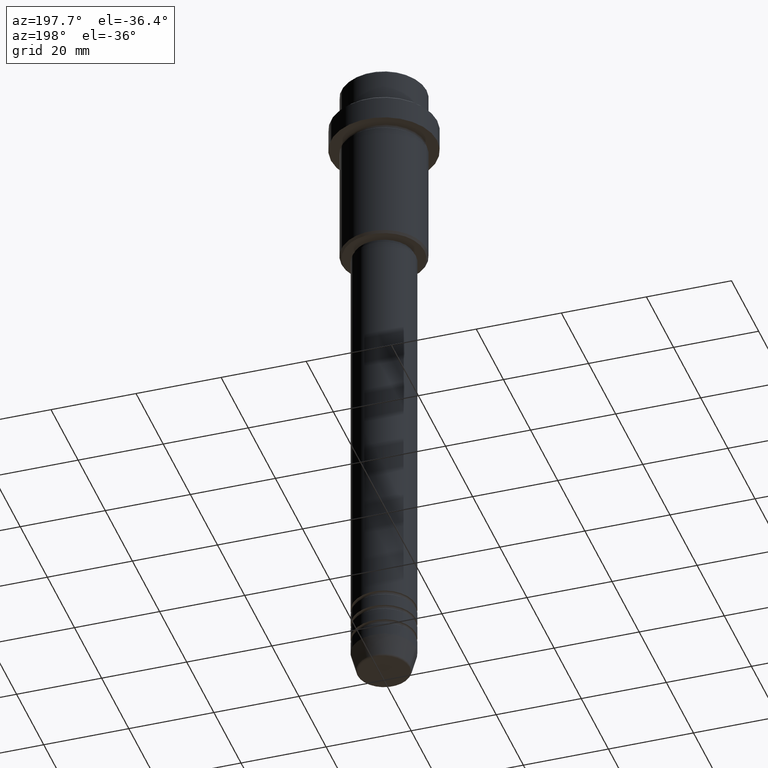
[diagram: clean part render]
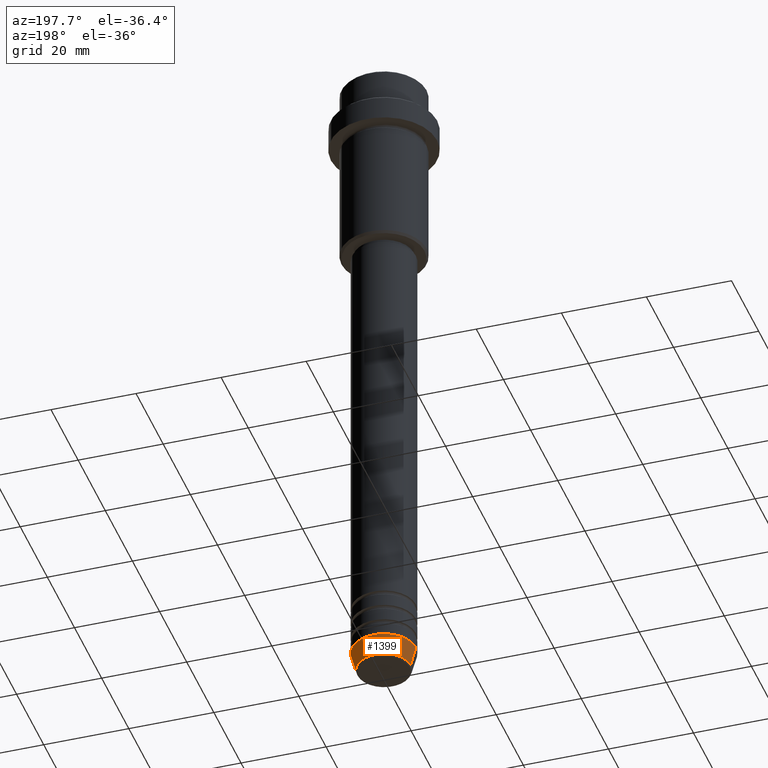
[diagram: same view with one face highlighted and labeled with its STEP entity id]
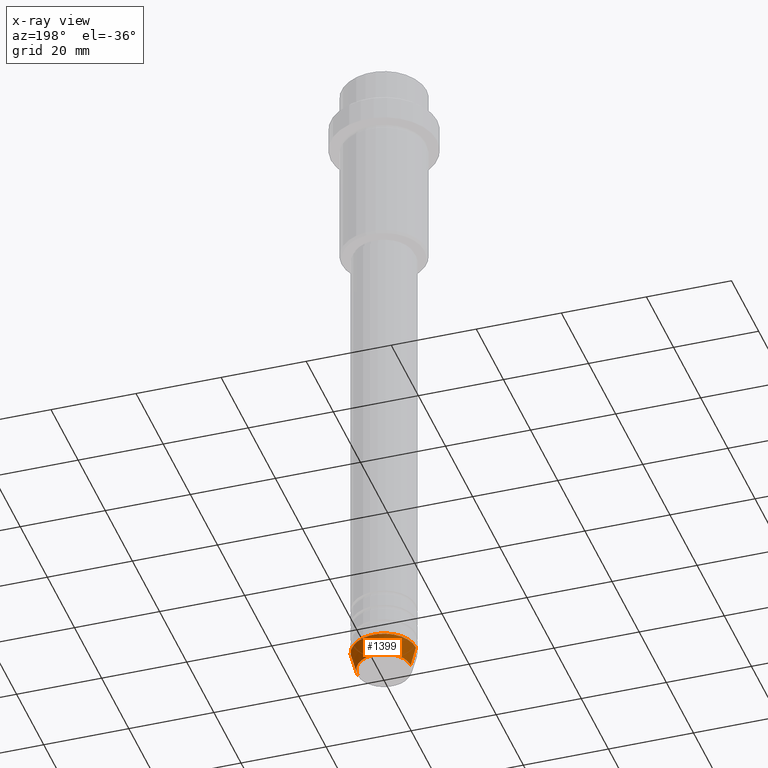
[diagram: x-ray of the same camera — body ghosted, the highlighted face saturated]
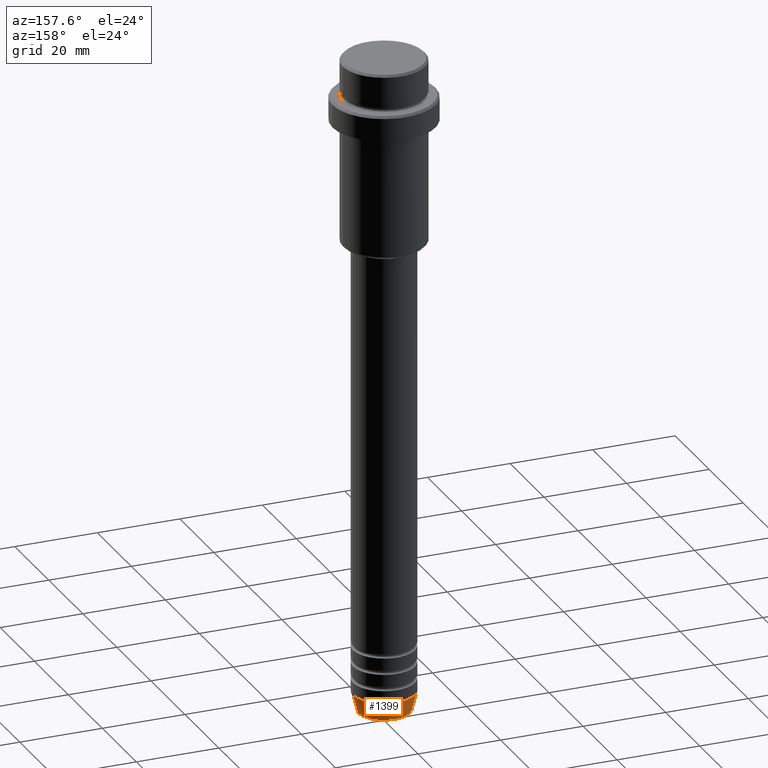
[diagram: same view with one face highlighted and labeled with its STEP entity id]
A machine part, auxiliary view. The second image highlights one B-rep face of the part: STEP entity #1399.
The next image is the same camera in x-ray: the body ghosted, the highlighted face saturated — about 0% of this face is hidden behind the body in this view.
A second angle (auxiliary view) of the same face is appended — the face is thin or edge-on in the first view.
In plain terms, the highlighted conical surface has half-angle 15 deg.
Its self-contained STEP definition (entity closure, byte-faithful):
#80 = CIRCLE ( 'NONE', #776, 7.500000000000000000 ) ;
#84 = VECTOR ( 'NONE', #453, 1000.000000000000114 ) ;
#95 = CARTESIAN_POINT ( 'NONE',  ( 0.000000000000000000, 0.000000000000000000, -159.6294095225512422 ) ) ;
#122 = CARTESIAN_POINT ( 'NONE',  ( 7.500000000000000000, 0.000000000000000000, -155.0000000000000000 ) ) ;
#153 = DIRECTION ( 'NONE',  ( 1.000000000000000000, 0.000000000000000000, 0.000000000000000000 ) ) ;
#192 = ORIENTED_EDGE ( 'NONE', *, *, #711, .T. ) ;
#228 = CARTESIAN_POINT ( 'NONE',  ( -6.259553456999435106, 8.425296549405626528E-16, -159.6294095225512422 ) ) ;
#233 = ORIENTED_EDGE ( 'NONE', *, *, #1338, .F. ) ;
#244 = CARTESIAN_POINT ( 'NONE',  ( -7.500000000000000000, 9.184850993605147944E-16, -155.0000000000000000 ) ) ;
#245 = AXIS2_PLACEMENT_3D ( 'NONE', #95, #850, #153 ) ;
#256 = DIRECTION ( 'NONE',  ( -0.000000000000000000, -0.000000000000000000, 1.000000000000000000 ) ) ;
#275 = VERTEX_POINT ( 'NONE', #228 ) ;
#319 = LINE ( 'NONE', #952, #382 ) ;
#366 = VERTEX_POINT ( 'NONE', #122 ) ;
#371 = VERTEX_POINT ( 'NONE', #988 ) ;
#382 = VECTOR ( 'NONE', #1058, 1000.000000000000114 ) ;
#453 = DIRECTION ( 'NONE',  ( -0.2588190451025227379, 3.169619151431788361E-17, 0.9659258262890676461 ) ) ;
#537 = DIRECTION ( 'NONE',  ( 1.000000000000000000, 0.000000000000000000, 0.000000000000000000 ) ) ;
#557 = ORIENTED_EDGE ( 'NONE', *, *, #1001, .T. ) ;
#696 = DIRECTION ( 'NONE',  ( -0.000000000000000000, -0.000000000000000000, 1.000000000000000000 ) ) ;
#711 = EDGE_CURVE ( 'NONE', #275, #1025, #1305, .T. ) ;
#776 = AXIS2_PLACEMENT_3D ( 'NONE', #1217, #256, #537 ) ;
#844 = CIRCLE ( 'NONE', #245, 6.259553456999435106 ) ;
#850 = DIRECTION ( 'NONE',  ( -0.000000000000000000, -0.000000000000000000, 1.000000000000000000 ) ) ;
#921 = CONICAL_SURFACE ( 'NONE', #1172, 7.500000000000000000, 0.2617993877991514617 ) ;
#927 = DIRECTION ( 'NONE',  ( 1.000000000000000000, 0.000000000000000000, 0.000000000000000000 ) ) ;
#952 = CARTESIAN_POINT ( 'NONE',  ( 7.500000000000000000, 0.000000000000000000, -155.0000000000000000 ) ) ;
#964 = ORIENTED_EDGE ( 'NONE', *, *, #1131, .F. ) ;
#988 = CARTESIAN_POINT ( 'NONE',  ( 6.259553456999435106, 0.000000000000000000, -159.6294095225512422 ) ) ;
#1001 = EDGE_CURVE ( 'NONE', #371, #275, #844, .T. ) ;
#1025 = VERTEX_POINT ( 'NONE', #1166 ) ;
#1058 = DIRECTION ( 'NONE',  ( 0.2588190451025227379, 0.000000000000000000, 0.9659258262890676461 ) ) ;
#1131 = EDGE_CURVE ( 'NONE', #371, #366, #319, .T. ) ;
#1141 = EDGE_LOOP ( 'NONE', ( #557, #192, #233, #964 ) ) ;
#1166 = CARTESIAN_POINT ( 'NONE',  ( -7.500000000000000000, 9.184850993605147944E-16, -155.0000000000000000 ) ) ;
#1172 = AXIS2_PLACEMENT_3D ( 'NONE', #1370, #696, #927 ) ;
#1195 = FACE_OUTER_BOUND ( 'NONE', #1141, .T. ) ;
#1217 = CARTESIAN_POINT ( 'NONE',  ( 0.000000000000000000, 0.000000000000000000, -155.0000000000000000 ) ) ;
#1305 = LINE ( 'NONE', #244, #84 ) ;
#1338 = EDGE_CURVE ( 'NONE', #366, #1025, #80, .T. ) ;
#1370 = CARTESIAN_POINT ( 'NONE',  ( 0.000000000000000000, 0.000000000000000000, -155.0000000000000000 ) ) ;
#1399 = ADVANCED_FACE ( 'NONE', ( #1195 ), #921, .T. ) ;